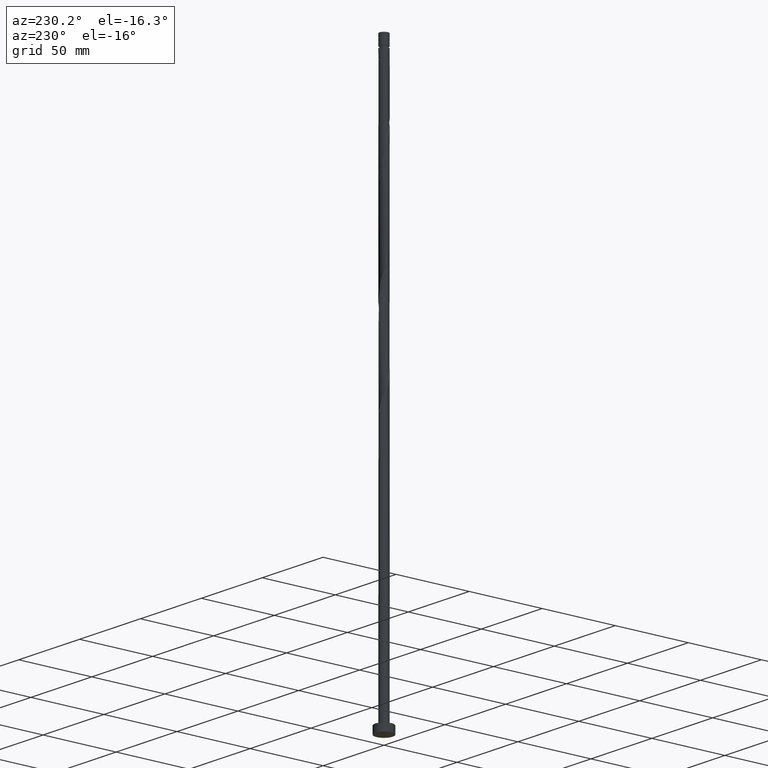
[diagram: clean part render]
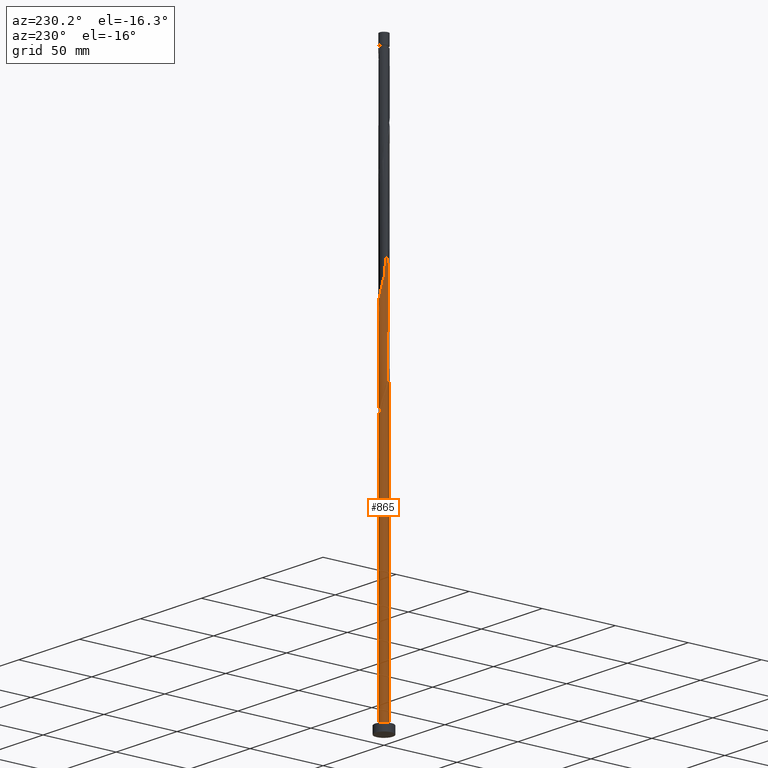
[diagram: same view with one face highlighted and labeled with its STEP entity id]
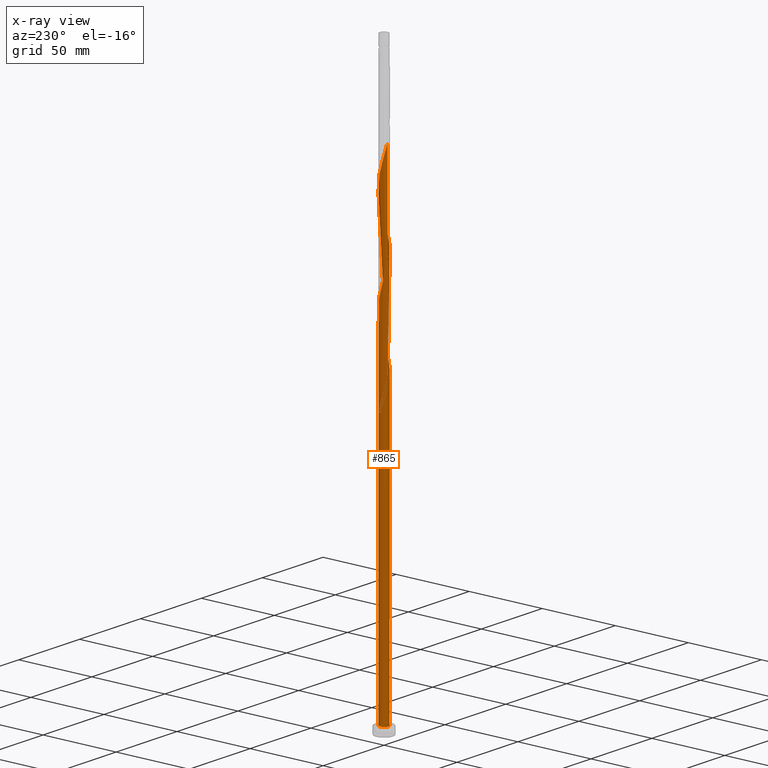
[diagram: x-ray of the same camera — body ghosted, the highlighted face saturated]
A machine part, auxiliary view. The second image highlights one B-rep face of the part: STEP entity #865.
The next image is the same camera in x-ray: the body ghosted, the highlighted face saturated — about 0% of this face is hidden behind the body in this view.
In plain terms, the highlighted cylindrical surface (bore or boss wall) has radius 3 mm, axis along (-0, -0, -1).
Its self-contained STEP definition (entity closure, byte-faithful):
#8 = CARTESIAN_POINT ( 'NONE',  ( -2.956194341916738466, 0.6002808636434361356, 192.5642349410992153 ) ) ;
#10 = CARTESIAN_POINT ( 'NONE',  ( -1.195207115623886374, 2.751632233922632675, 178.1197904966547867 ) ) ;
#19 = VERTEX_POINT ( 'NONE', #1445 ) ;
#36 = DIRECTION ( 'NONE',  ( 0.000000000000000000, -0.000000000000000000, -1.000000000000000000 ) ) ;
#61 = CIRCLE ( 'NONE', #1377, 3.000000000000000444 ) ;
#62 = CARTESIAN_POINT ( 'NONE',  ( -1.245111594254572074, 2.729413328510881254, 182.5642349410991869 ) ) ;
#84 = CARTESIAN_POINT ( 'NONE',  ( 2.584311715169901991, -1.523592123514565744, 284.7864571633214723 ) ) ;
#85 = CARTESIAN_POINT ( 'NONE',  ( 1.484415317302709703, -2.626010904050888772, 279.2309016077658157 ) ) ;
#95 = CARTESIAN_POINT ( 'NONE',  ( -2.211065689225172992, 2.027606598413813632, 249.2309016077659010 ) ) ;
#104 = CARTESIAN_POINT ( 'NONE',  ( -2.424175730171096443, 1.795214230025626412, 317.0086793855437008 ) ) ;
#106 = CARTESIAN_POINT ( 'NONE',  ( 1.245111594254574294, 2.729413328510884362, 235.8975682744325297 ) ) ;
#116 = CARTESIAN_POINT ( 'NONE',  ( 1.997955648279248431, -2.259998966802002851, 214.7864571633214723 ) ) ;
#119 = CARTESIAN_POINT ( 'NONE',  ( 0.2879860105828843109, -3.002746436205632197, 208.1197904966547867 ) ) ;
#124 = CARTESIAN_POINT ( 'NONE',  ( -2.611625341554443036, -1.476283534877587567, 262.5642349410991869 ) ) ;
#136 = ORIENTED_EDGE ( 'NONE', *, *, #305, .F. ) ;
#167 = CARTESIAN_POINT ( 'NONE',  ( -2.861491667719898047, 0.9010357570982414632, 191.4531238299881011 ) ) ;
#179 = CARTESIAN_POINT ( 'NONE',  ( -3.000000000000004885, -4.484524626199453839E-16, 323.7721250309111269 ) ) ;
#187 = CARTESIAN_POINT ( 'NONE',  ( -2.986297077045549919, 0.2864083930844389392, 193.6753460522103580 ) ) ;
#199 = VERTEX_POINT ( 'NONE', #769 ) ;
#208 = VERTEX_POINT ( 'NONE', #179 ) ;
#223 = VERTEX_POINT ( 'NONE', #1476 ) ;
#225 = CARTESIAN_POINT ( 'NONE',  ( 2.456461689585825781, 1.750776419202127565, 297.0086793855436440 ) ) ;
#232 = CARTESIAN_POINT ( 'NONE',  ( 0.9582386936374938102, 2.860279830445437987, 303.6753460522104433 ) ) ;
#233 = CARTESIAN_POINT ( 'NONE',  ( 0.2879860105828843109, -3.002746436205632197, 274.7864571633215292 ) ) ;
#239 = CARTESIAN_POINT ( 'NONE',  ( -0.6504259784947274969, 2.928642355512051765, 180.3420127188770152 ) ) ;
#242 = CARTESIAN_POINT ( 'NONE',  ( 1.785379858637182293, 2.410895841875525747, 300.3420127188769584 ) ) ;
#243 = CARTESIAN_POINT ( 'NONE',  ( 2.956194341916741575, 0.6002808636434358025, 225.8975682744325866 ) ) ;
#247 = CARTESIAN_POINT ( 'NONE',  ( -2.038775222402708032, -2.223244857174723865, 199.2309016077659010 ) ) ;
#251 = CARTESIAN_POINT ( 'NONE',  ( -0.2879860105828826455, 3.002746436205632641, 308.1197904966547298 ) ) ;
#254 = CARTESIAN_POINT ( 'NONE',  ( 1.997955648279248431, -2.259998966802002851, 281.4531238299881011 ) ) ;
#262 = CARTESIAN_POINT ( 'NONE',  ( -0.5969924622639736222, 2.940000000000003944, 309.2309016077659862 ) ) ;
#264 = CARTESIAN_POINT ( 'NONE',  ( -1.741185482790979400, 2.443004935426444924, 247.0086793855437008 ) ) ;
#267 = CARTESIAN_POINT ( 'NONE',  ( 0.9059989139450621565, -2.877253563794376578, 210.3420127188769868 ) ) ;
#270 = ORIENTED_EDGE ( 'NONE', *, *, #885, .F. ) ;
#274 = CARTESIAN_POINT ( 'NONE',  ( -1.531984494871654556, -2.598546826576328961, 268.1197904966549004 ) ) ;
#282 = ORIENTED_EDGE ( 'NONE', *, *, #1621, .T. ) ;
#299 = CARTESIAN_POINT ( 'NONE',  ( -3.000000000000001332, 3.991226917317535029E-15, 194.6896781846206466 ) ) ;
#302 = DIRECTION ( 'NONE',  ( -0.000000000000000000, -0.000000000000000000, -1.000000000000000000 ) ) ;
#305 = EDGE_CURVE ( 'NONE', #748, #19, #1404, .T. ) ;
#321 = CARTESIAN_POINT ( 'NONE',  ( -1.484415317302710147, 2.626010904050888328, 179.2309016077659862 ) ) ;
#328 = DIRECTION ( 'NONE',  ( -1.000000000000000000, 0.000000000000000000, 0.000000000000000000 ) ) ;
#343 = EDGE_CURVE ( 'NONE', #1407, #223, #1546, .T. ) ;
#366 = CARTESIAN_POINT ( 'NONE',  ( -0.9582386936374910347, 2.860279830445433991, 181.4531238299880442 ) ) ;
#371 = CARTESIAN_POINT ( 'NONE',  ( -2.456461689585825781, -1.750776419202128231, 197.0086793855437577 ) ) ;
#376 = CARTESIAN_POINT ( 'NONE',  ( -1.741185482790979400, 2.443004935426444924, 313.6753460522103865 ) ) ;
#384 = CARTESIAN_POINT ( 'NONE',  ( 0.3426132633519654580, 2.997004880578673980, 305.8975682744325582 ) ) ;
#385 = CARTESIAN_POINT ( 'NONE',  ( -2.744447700168710202, 1.251970017003503299, 252.5642349410991869 ) ) ;
#397 = CARTESIAN_POINT ( 'NONE',  ( -0.3426132633519650694, -2.997004880578673980, 272.5642349410992438 ) ) ;
#405 = CARTESIAN_POINT ( 'NONE',  ( 2.038775222402708476, 2.223244857174723421, 299.2309016077659294 ) ) ;
#408 = CARTESIAN_POINT ( 'NONE',  ( 2.247618455994266906, 1.987010638188424938, 231.4531238299881579 ) ) ;
#418 = CARTESIAN_POINT ( 'NONE',  ( -2.456461689585825781, -1.750776419202128231, 263.6753460522103296 ) ) ;
#427 = EDGE_CURVE ( 'NONE', #208, #199, #1753, .T. ) ;
#429 = CARTESIAN_POINT ( 'NONE',  ( -1.484415317302710147, 2.626010904050888328, 245.8975682744325866 ) ) ;
#449 = EDGE_LOOP ( 'NONE', ( #617, #1560, #1030, #1581, #1634, #1662, #136, #282, #270 ) ) ;
#503 = CARTESIAN_POINT ( 'NONE',  ( -2.844610918258240417, 0.9529893618115777842, 187.0086793855436440 ) ) ;
#513 = CARTESIAN_POINT ( 'NONE',  ( -2.861491667719902043, -0.9010357570982412412, 193.6753460522103580 ) ) ;
#520 = CARTESIAN_POINT ( 'NONE',  ( -2.766788993523061624, -1.201790650553046236, 194.7864571633214439 ) ) ;
#525 = CARTESIAN_POINT ( 'NONE',  ( 2.944774136347771520, -0.6540087066196536014, 288.1197904966547298 ) ) ;
#526 = CARTESIAN_POINT ( 'NONE',  ( 2.038775222402708476, 2.223244857174723421, 232.5642349410992438 ) ) ;
#533 = CARTESIAN_POINT ( 'NONE',  ( 2.424175730171095111, -1.795214230025626634, 283.6753460522103865 ) ) ;
#534 = CARTESIAN_POINT ( 'NONE',  ( -1.245111594254573850, -2.729413328510883474, 269.2309016077658157 ) ) ;
#541 = CARTESIAN_POINT ( 'NONE',  ( 0.000000000000000000, 0.000000000000000000, 5.000000000000000000 ) ) ;
#543 = CARTESIAN_POINT ( 'NONE',  ( -1.997955648279249319, 2.259998966802001963, 248.1197904966547867 ) ) ;
#555 = CARTESIAN_POINT ( 'NONE',  ( -2.944774136347771964, 0.6540087066196519361, 254.7864571633214439 ) ) ;
#565 = CARTESIAN_POINT ( 'NONE',  ( -3.016399812174364481, 0.02746407747455963458, 257.0086793855435872 ) ) ;
#600 = CARTESIAN_POINT ( 'NONE',  ( -2.211065689225172992, 2.027606598413813632, 182.5642349410993006 ) ) ;
#615 = CARTESIAN_POINT ( 'NONE',  ( 0.5969924622639746215, 2.940000000000000835, 175.8975682744325297 ) ) ;
#617 = ORIENTED_EDGE ( 'NONE', *, *, #427, .F. ) ;
#641 = CARTESIAN_POINT ( 'NONE',  ( -2.980586974261068001, 0.3407363920471054297, 189.2309016077659010 ) ) ;
#645 = CARTESIAN_POINT ( 'NONE',  ( -3.000000000000003553, -0.1435319978602576652, 190.9473402231417651 ) ) ;
#649 = CARTESIAN_POINT ( 'NONE',  ( 2.980586974261068001, -0.3407363920471055962, 289.2309016077659862 ) ) ;
#653 = AXIS2_PLACEMENT_3D ( 'NONE', #793, #1085, #1329 ) ;
#657 = CARTESIAN_POINT ( 'NONE',  ( 0.5969924622639746215, 2.940000000000000835, 175.8975682744325297 ) ) ;
#661 = CARTESIAN_POINT ( 'NONE',  ( 1.741185482790978512, -2.443004935426445812, 280.3420127188770152 ) ) ;
#668 = VECTOR ( 'NONE', #1831, 1000.000000000000000 ) ;
#674 = CARTESIAN_POINT ( 'NONE',  ( 1.531984494871656111, 2.598546826576328073, 301.4531238299881011 ) ) ;
#675 = CARTESIAN_POINT ( 'NONE',  ( -2.861491667719902043, -0.9010357570982412412, 260.3420127188770152 ) ) ;
#679 = CARTESIAN_POINT ( 'NONE',  ( -1.531984494871654556, -2.598546826576328961, 201.4531238299880727 ) ) ;
#683 = CARTESIAN_POINT ( 'NONE',  ( 1.245111594254574294, 2.729413328510884362, 302.5642349410992438 ) ) ;
#686 = CARTESIAN_POINT ( 'NONE',  ( 2.424175730171095111, -1.795214230025626634, 217.0086793855436724 ) ) ;
#697 = CARTESIAN_POINT ( 'NONE',  ( -2.956194341916741575, -0.6002808636434362466, 259.2309016077658725 ) ) ;
#700 = CARTESIAN_POINT ( 'NONE',  ( -0.02731362638454099684, -2.999875658392152644, 207.0086793855436440 ) ) ;
#705 = CARTESIAN_POINT ( 'NONE',  ( 3.000000000000000444, 0.000000000000000000, 5.000000000000000000 ) ) ;
#707 = CARTESIAN_POINT ( 'NONE',  ( -0.9059989139450634887, 2.877253563794375246, 243.6753460522103580 ) ) ;
#737 = CARTESIAN_POINT ( 'NONE',  ( -0.5969924622639735112, 2.940000000000003944, 175.8975682744325297 ) ) ;
#745 = CARTESIAN_POINT ( 'NONE',  ( -2.766788993523058071, 1.201790650553046014, 190.3420127188769868 ) ) ;
#748 = VERTEX_POINT ( 'NONE', #996 ) ;
#766 = DIRECTION ( 'NONE',  ( -1.000000000000000000, 0.000000000000000000, 0.000000000000000000 ) ) ;
#769 = CARTESIAN_POINT ( 'NONE',  ( -3.000000000000001332, 3.991226917317535029E-15, 194.6896781846206750 ) ) ;
#793 = CARTESIAN_POINT ( 'NONE',  ( 0.000000000000000000, 0.000000000000000000, 5.000000000000000000 ) ) ;
#803 = DIRECTION ( 'NONE',  ( 1.000000000000000000, 0.000000000000000000, 0.000000000000000000 ) ) ;
#808 = LINE ( 'NONE', #1385, #668 ) ;
#810 = CARTESIAN_POINT ( 'NONE',  ( -2.944774136347771964, 0.6540087066196519361, 321.4531238299881579 ) ) ;
#811 = CARTESIAN_POINT ( 'NONE',  ( 2.211065689225172104, -2.027606598413813632, 215.8975682744325582 ) ) ;
#818 = CARTESIAN_POINT ( 'NONE',  ( -2.247618455994262465, 1.987010638188425382, 187.0086793855436724 ) ) ;
#822 = CARTESIAN_POINT ( 'NONE',  ( 2.766788993523062512, 1.201790650553044904, 228.1197904966547583 ) ) ;
#830 = CARTESIAN_POINT ( 'NONE',  ( -3.000000000000004885, -4.484524626199453839E-16, 323.7721250309111269 ) ) ;
#832 = CARTESIAN_POINT ( 'NONE',  ( 2.211065689225172104, -2.027606598413813632, 282.5642349410993575 ) ) ;
#842 = CARTESIAN_POINT ( 'NONE',  ( 2.247618455994266906, 1.987010638188424938, 298.1197904966547867 ) ) ;
#844 = CARTESIAN_POINT ( 'NONE',  ( -2.584311715169902435, 1.523592123514564856, 251.4531238299880727 ) ) ;
#848 = CARTESIAN_POINT ( 'NONE',  ( -0.3426132633519650694, -2.997004880578673980, 205.8975682744325866 ) ) ;
#853 = CARTESIAN_POINT ( 'NONE',  ( -0.9582386936374935882, -2.860279830445437987, 270.3420127188769015 ) ) ;
#865 = ADVANCED_FACE ( 'NONE', ( #907 ), #1779, .T. ) ;
#885 = EDGE_CURVE ( 'NONE', #199, #1539, #1215, .T. ) ;
#907 = FACE_OUTER_BOUND ( 'NONE', #449, .T. ) ;
#913 = CARTESIAN_POINT ( 'NONE',  ( 0.000000000000000000, 0.000000000000000000, 175.8975682744325297 ) ) ;
#918 = EDGE_CURVE ( 'NONE', #19, #223, #808, .T. ) ;
#929 = CARTESIAN_POINT ( 'NONE',  ( -2.456461689585820896, 1.750776419202127343, 188.1197904966547583 ) ) ;
#935 = CARTESIAN_POINT ( 'NONE',  ( -1.531984494871652336, 2.598546826576326296, 183.6753460522103296 ) ) ;
#947 = CARTESIAN_POINT ( 'NONE',  ( -2.944774136347771964, 0.6540087066196519361, 188.1197904966548435 ) ) ;
#956 = CARTESIAN_POINT ( 'NONE',  ( 1.785379858637182293, 2.410895841875525747, 233.6753460522103580 ) ) ;
#964 = CARTESIAN_POINT ( 'NONE',  ( -1.195207115623886374, 2.751632233922632675, 311.4531238299882716 ) ) ;
#966 = CARTESIAN_POINT ( 'NONE',  ( -0.02731362638454099684, -2.999875658392152644, 273.6753460522103865 ) ) ;
#971 = CARTESIAN_POINT ( 'NONE',  ( -0.6504259784947296064, -2.928642355512055762, 204.7864571633215007 ) ) ;
#977 = CARTESIAN_POINT ( 'NONE',  ( -2.584311715169902435, 1.523592123514564856, 318.1197904966548435 ) ) ;
#979 = CARTESIAN_POINT ( 'NONE',  ( 1.531984494871656111, 2.598546826576328073, 234.7864571633214439 ) ) ;
#989 = CARTESIAN_POINT ( 'NONE',  ( 1.484415317302709703, -2.626010904050888772, 212.5642349410992438 ) ) ;
#996 = CARTESIAN_POINT ( 'NONE',  ( -0.5969924622639735112, 2.940000000000003944, 175.8975682744325297 ) ) ;
#1020 = CARTESIAN_POINT ( 'NONE',  ( -3.000000000000000444, 0.000000000000000000, 384.2300000000000182 ) ) ;
#1030 = ORIENTED_EDGE ( 'NONE', *, *, #918, .T. ) ;
#1038 = AXIS2_PLACEMENT_3D ( 'NONE', #541, #1708, #803 ) ;
#1041 = CARTESIAN_POINT ( 'NONE',  ( -2.584311715169902435, 1.523592123514564856, 184.7864571633214155 ) ) ;
#1061 = EDGE_CURVE ( 'NONE', #19, #208, #1266, .T. ) ;
#1076 = CARTESIAN_POINT ( 'NONE',  ( -1.785379858637178518, 2.410895841875523082, 184.7864571633214439 ) ) ;
#1085 = DIRECTION ( 'NONE',  ( 0.000000000000000000, 0.000000000000000000, 1.000000000000000000 ) ) ;
#1099 = CARTESIAN_POINT ( 'NONE',  ( 2.956194341916741575, 0.6002808636434358025, 292.5642349410992438 ) ) ;
#1100 = CARTESIAN_POINT ( 'NONE',  ( 0.02731362638454142705, 2.999875658392153088, 240.3420127188770152 ) ) ;
#1107 = CARTESIAN_POINT ( 'NONE',  ( 3.016399812174364925, -0.02746407747456069276, 290.3420127188770721 ) ) ;
#1108 = CARTESIAN_POINT ( 'NONE',  ( 2.980586974261068001, -0.3407363920471055962, 222.5642349410991869 ) ) ;
#1117 = CARTESIAN_POINT ( 'NONE',  ( -2.980586974261068001, 0.3407363920471054297, 322.5642349410991301 ) ) ;
#1119 = CARTESIAN_POINT ( 'NONE',  ( -2.766788993523061624, -1.201790650553046236, 261.4531238299881579 ) ) ;
#1129 = CARTESIAN_POINT ( 'NONE',  ( 2.611625341554443036, 1.476283534877587345, 295.8975682744325582 ) ) ;
#1131 = CARTESIAN_POINT ( 'NONE',  ( 2.584311715169901991, -1.523592123514565744, 218.1197904966547867 ) ) ;
#1142 = CARTESIAN_POINT ( 'NONE',  ( -0.2879860105828826455, 3.002746436205632641, 241.4531238299881011 ) ) ;
#1171 = EDGE_CURVE ( 'NONE', #223, #1407, #1248, .T. ) ;
#1181 = CARTESIAN_POINT ( 'NONE',  ( -2.424175730171096443, 1.795214230025626412, 183.6753460522103012 ) ) ;
#1207 = VECTOR ( 'NONE', #302, 1000.000000000000000 ) ;
#1215 =( BOUNDED_CURVE ( )  B_SPLINE_CURVE ( 2, ( #299, #1492, #187, #8, #167, #745, #1349, #929, #818, #1514, #1076, #935, #62, #366, #239, #1823, #1226, #1375, #657 ),
 .UNSPECIFIED., .F., .T. ) 
 B_SPLINE_CURVE_WITH_KNOTS ( ( 3, 2, 2, 2, 2, 2, 2, 2, 2, 3 ),
 ( 0.9295286012773115170, 0.9333333333333333481, 0.9416666666666666519, 0.9499999999999999556, 0.9583333333333333703, 0.9666666666666666741, 0.9749999999999999778, 0.9833333333333332815, 0.9916666666666666963, 1.000000000000000000 ),
 .UNSPECIFIED. ) 
 CURVE ( )  GEOMETRIC_REPRESENTATION_ITEM ( )  RATIONAL_B_SPLINE_CURVE ( ( 0.9066196499552441335, 0.9068171577856569687, 0.9090909090909558010, 0.9041108139712040748, 0.9090909090909558010, 0.9041108139712040748, 0.9090909090909558010, 0.9041108139712040748, 0.9090909090909558010, 0.9041108139712040748, 0.9090909090909558010, 0.9041108139712040748, 0.9090909090909558010, 0.9041108139712040748, 0.9090909090909558010, 0.9041108139712040748, 0.9090909090909558010, 0.9041108139712040748, 0.9090909090909558010 ) ) 
 REPRESENTATION_ITEM ( '' )  );
#1226 = CARTESIAN_POINT ( 'NONE',  ( -0.02731362638453935232, 2.999875658392149091, 178.1197904966547298 ) ) ;
#1236 = CARTESIAN_POINT ( 'NONE',  ( 0.02731362638454142705, 2.999875658392153088, 307.0086793855437008 ) ) ;
#1240 = CARTESIAN_POINT ( 'NONE',  ( -2.986297077045553472, -0.2864083930844378845, 191.4531238299881011 ) ) ;
#1245 = CARTESIAN_POINT ( 'NONE',  ( 0.6504259784947311607, 2.928642355512054873, 304.7864571633214155 ) ) ;
#1246 = CARTESIAN_POINT ( 'NONE',  ( 2.744447700168710202, -1.251970017003503743, 219.2309016077658725 ) ) ;
#1248 = CIRCLE ( 'NONE', #1038, 3.000000000000000444 ) ;
#1257 = CARTESIAN_POINT ( 'NONE',  ( -0.5969924622639736222, 2.940000000000003944, 242.5642349410992722 ) ) ;
#1260 = CARTESIAN_POINT ( 'NONE',  ( -2.611625341554443036, -1.476283534877587567, 195.8975682744326150 ) ) ;
#1266 =( BOUNDED_CURVE ( )  B_SPLINE_CURVE ( 2, ( #1673, #645, #1240, #1829, #513, #520, #1260, #371, #1550, #247, #1409, #679, #1847, #1704, #971, #848, #700, #119, #1572, #267, #1431, #989, #1277, #116, #811, #686, #1131, #1246, #1722, #1865, #1108, #1692, #1415, #243, #1267, #822, #1428, #1405, #408, #526, #956, #979, #106, #1853, #1701, #1834, #1100, #1142, #1257, #707, #1569, #429, #264, #543, #95, #1710, #844, #385, #1547, #555, #1730, #565, #1286, #697, #675, #1119, #124, #418, #1537, #1843, #1579, #274, #534, #853, #1436, #397, #966, #233, #1874, #1396, #1557, #85, #661, #254, #832, #533, #84, #1720, #1851, #525, #649, #1107, #1523, #1099, #1567, #1555, #1129, #225, #842, #405, #242, #674, #683, #232, #1245, #384, #1236, #251, #262, #1842, #964, #1690, #376, #1413, #1825, #104, #977, #1425, #1275, #810, #1117, #1700, #830 ),
 .UNSPECIFIED., .F., .T. ) 
 B_SPLINE_CURVE_WITH_KNOTS ( ( 3, 2, 2, 2, 2, 2, 2, 2, 2, 2, 2, 2, 2, 2, 2, 2, 2, 2, 2, 2, 2, 2, 2, 2, 2, 2, 2, 2, 2, 2, 2, 2, 2, 2, 2, 2, 2, 2, 2, 2, 2, 2, 2, 2, 2, 2, 2, 2, 2, 2, 2, 2, 2, 2, 2, 2, 2, 2, 2, 2, 2, 3 ),
 ( 0.05452860127731172513, 0.05833333333333334814, 0.06666666666666665186, 0.07499999999999995559, 0.08333333333333337034, 0.09166666666666667407, 0.09999999999999997780, 0.1083333333333332815, 0.1166666666666666963, 0.1250000000000000000, 0.1333333333333333037, 0.1416666666666667185, 0.1500000000000000222, 0.1583333333333333259, 0.1666666666666666297, 0.1750000000000000444, 0.1833333333333333481, 0.1916666666666666519, 0.1999999999999999556, 0.2083333333333333703, 0.2166666666666666741, 0.2249999999999999778, 0.2333333333333332815, 0.2416666666666666963, 0.2500000000000000000, 0.2583333333333333037, 0.2666666666666667185, 0.2750000000000000222, 0.2833333333333333259, 0.2916666666666666297, 0.3000000000000000444, 0.3083333333333333481, 0.3166666666666666519, 0.3249999999999999556, 0.3333333333333333703, 0.3416666666666666741, 0.3499999999999999778, 0.3583333333333332815, 0.3666666666666666963, 0.3750000000000000000, 0.3833333333333333037, 0.3916666666666667185, 0.4000000000000000222, 0.4083333333333333259, 0.4166666666666666297, 0.4250000000000000444, 0.4333333333333333481, 0.4416666666666666519, 0.4499999999999999556, 0.4583333333333333703, 0.4666666666666666741, 0.4749999999999999778, 0.4833333333333332815, 0.4916666666666666963, 0.5000000000000000000, 0.5083333333333333037, 0.5166666666666666075, 0.5250000000000000222, 0.5333333333333333259, 0.5416666666666667407, 0.5500000000000000444, 0.5545286012773115170 ),
 .UNSPECIFIED. ) 
 CURVE ( )  GEOMETRIC_REPRESENTATION_ITEM ( )  RATIONAL_B_SPLINE_CURVE ( ( 0.9066196499552490184, 0.9068171577856618537, 0.9090909090909605750, 0.9041108139712088487, 0.9090909090909605750, 0.9041108139712088487, 0.9090909090909605750, 0.9041108139712088487, 0.9090909090909605750, 0.9041108139712088487, 0.9090909090909605750, 0.9041108139712088487, 0.9090909090909605750, 0.9041108139712088487, 0.9090909090909605750, 0.9041108139712088487, 0.9090909090909605750, 0.9041108139712088487, 0.9090909090909605750, 0.9041108139712088487, 0.9090909090909605750, 0.9041108139712088487, 0.9090909090909605750, 0.9041108139712088487, 0.9090909090909605750, 0.9041108139712088487, 0.9090909090909605750, 0.9041108139712088487, 0.9090909090909605750, 0.9041108139712088487, 0.9090909090909605750, 0.9041108139712088487, 0.9090909090909605750, 0.9041108139712088487, 0.9090909090909605750, 0.9041108139712088487, 0.9090909090909605750, 0.9041108139712088487, 0.9090909090909605750, 0.9041108139712088487, 0.9090909090909605750, 0.9041108139712088487, 0.9090909090909605750, 0.9041108139712088487, 0.9090909090909605750, 0.9041108139712088487, 0.9090909090909605750, 0.9041108139712088487, 0.9090909090909605750, 0.9041108139712088487, 0.9090909090909605750, 0.9041108139712088487, 0.9090909090909605750, 0.9041108139712088487, 0.9090909090909605750, 0.9041108139712088487, 0.9090909090909605750, 0.9041108139712088487, 0.9090909090909605750, 0.9041108139712088487, 0.9090909090909605750, 0.9041108139712088487, 0.9090909090909605750, 0.9041108139712088487, 0.9090909090909605750, 0.9041108139712088487, 0.9090909090909605750, 0.9041108139712088487, 0.9090909090909605750, 0.9041108139712088487, 0.9090909090909605750, 0.9041108139712088487, 0.9090909090909605750, 0.9041108139712088487, 0.9090909090909605750, 0.9041108139712088487, 0.9090909090909605750, 0.9041108139712088487, 0.9090909090909605750, 0.9041108139712088487, 0.9090909090909605750, 0.9041108139712088487, 0.9090909090909605750, 0.9041108139712088487, 0.9090909090909605750, 0.9041108139712088487, 0.9090909090909605750, 0.9041108139712088487, 0.9090909090909605750, 0.9041108139712088487, 0.9090909090909605750, 0.9041108139712088487, 0.9090909090909605750, 0.9041108139712088487, 0.9090909090909605750, 0.9041108139712088487, 0.9090909090909605750, 0.9041108139712088487, 0.9090909090909605750, 0.9041108139712088487, 0.9090909090909605750, 0.9041108139712088487, 0.9090909090909605750, 0.9041108139712088487, 0.9090909090909605750, 0.9041108139712088487, 0.9090909090909605750, 0.9041108139712088487, 0.9090909090909605750, 0.9041108139712088487, 0.9090909090909605750, 0.9041108139712088487, 0.9090909090909605750, 0.9041108139712088487, 0.9090909090909605750, 0.9041108139712088487, 0.9090909090909605750, 0.9041108139712088487, 0.9090909090909605750, 0.9041108139712088487, 0.9090909090909605750, 0.9063845652765076810, 0.9066196499552487964 ) ) 
 REPRESENTATION_ITEM ( '' )  );
#1267 = CARTESIAN_POINT ( 'NONE',  ( 2.861491667719902487, 0.9010357570982404640, 227.0086793855437008 ) ) ;
#1275 = CARTESIAN_POINT ( 'NONE',  ( -2.844610918258240417, 0.9529893618115777842, 320.3420127188770721 ) ) ;
#1277 = CARTESIAN_POINT ( 'NONE',  ( 1.741185482790978512, -2.443004935426445812, 213.6753460522103580 ) ) ;
#1286 = CARTESIAN_POINT ( 'NONE',  ( -2.986297077045553472, -0.2864083930844378845, 258.1197904966547867 ) ) ;
#1317 = CARTESIAN_POINT ( 'NONE',  ( -0.9059989139450634887, 2.877253563794375246, 177.0086793855436440 ) ) ;
#1326 = CARTESIAN_POINT ( 'NONE',  ( -1.741185482790979400, 2.443004935426444924, 180.3420127188770152 ) ) ;
#1329 = DIRECTION ( 'NONE',  ( 1.000000000000000000, 0.000000000000000000, 0.000000000000000000 ) ) ;
#1349 = CARTESIAN_POINT ( 'NONE',  ( -2.611625341554439039, 1.476283534877586456, 189.2309016077658725 ) ) ;
#1359 = CARTESIAN_POINT ( 'NONE',  ( 0.000000000000000000, 0.000000000000000000, 384.2300000000000182 ) ) ;
#1370 = CARTESIAN_POINT ( 'NONE',  ( -2.744447700168710202, 1.251970017003503299, 185.8975682744325013 ) ) ;
#1375 = CARTESIAN_POINT ( 'NONE',  ( 0.2879860105828850325, 3.002746436205627756, 177.0086793855436440 ) ) ;
#1377 = AXIS2_PLACEMENT_3D ( 'NONE', #913, #36, #766 ) ;
#1385 = CARTESIAN_POINT ( 'NONE',  ( -3.000000000000000444, 0.000000000000000000, 384.2300000000000182 ) ) ;
#1395 = CARTESIAN_POINT ( 'NONE',  ( -3.000000000000004441, -2.690714775719672501E-15, 190.4387916975777557 ) ) ;
#1396 = CARTESIAN_POINT ( 'NONE',  ( 0.9059989139450621565, -2.877253563794376578, 277.0086793855436440 ) ) ;
#1404 =( BOUNDED_CURVE ( )  B_SPLINE_CURVE ( 2, ( #737, #1317, #10, #321, #1326, #1762, #600, #1181, #1041, #1370, #503, #947, #641, #1536, #1395 ),
 .UNSPECIFIED., .F., .T. ) 
 B_SPLINE_CURVE_WITH_KNOTS ( ( 3, 2, 2, 2, 2, 2, 2, 3 ),
 ( 0.000000000000000000, 0.008333333333333303727, 0.01666666666666671848, 0.02500000000000002220, 0.03333333333333332593, 0.04166666666666662966, 0.05000000000000004441, 0.05452860127731172513 ),
 .UNSPECIFIED. ) 
 CURVE ( )  GEOMETRIC_REPRESENTATION_ITEM ( )  RATIONAL_B_SPLINE_CURVE ( ( 0.9090909090909605750, 0.9041108139712088487, 0.9090909090909605750, 0.9041108139712088487, 0.9090909090909605750, 0.9041108139712088487, 0.9090909090909605750, 0.9041108139712088487, 0.9090909090909605750, 0.9041108139712088487, 0.9090909090909605750, 0.9041108139712088487, 0.9090909090909605750, 0.9063845652765075700, 0.9066196499552490184 ) ) 
 REPRESENTATION_ITEM ( '' )  );
#1405 = CARTESIAN_POINT ( 'NONE',  ( 2.456461689585825781, 1.750776419202127565, 230.3420127188770152 ) ) ;
#1407 = VERTEX_POINT ( 'NONE', #705 ) ;
#1409 = CARTESIAN_POINT ( 'NONE',  ( -1.785379858637181627, -2.410895841875526635, 200.3420127188769868 ) ) ;
#1413 = CARTESIAN_POINT ( 'NONE',  ( -1.997955648279249319, 2.259998966802001963, 314.7864571633214155 ) ) ;
#1415 = CARTESIAN_POINT ( 'NONE',  ( 2.986297077045553916, 0.2864083930844362191, 224.7864571633214439 ) ) ;
#1425 = CARTESIAN_POINT ( 'NONE',  ( -2.744447700168710202, 1.251970017003503299, 319.2309016077658725 ) ) ;
#1428 = CARTESIAN_POINT ( 'NONE',  ( 2.611625341554443036, 1.476283534877587345, 229.2309016077659010 ) ) ;
#1431 = CARTESIAN_POINT ( 'NONE',  ( 1.195207115623885930, -2.751632233922632675, 211.4531238299881011 ) ) ;
#1436 = CARTESIAN_POINT ( 'NONE',  ( -0.6504259784947296064, -2.928642355512055762, 271.4531238299881011 ) ) ;
#1445 = CARTESIAN_POINT ( 'NONE',  ( -3.000000000000004441, -2.690714775719672501E-15, 190.4387916975777557 ) ) ;
#1476 = CARTESIAN_POINT ( 'NONE',  ( -3.000000000000000444, 0.000000000000000000, 5.000000000000000000 ) ) ;
#1492 = CARTESIAN_POINT ( 'NONE',  ( -3.000000000000000444, 0.1435319978602510871, 194.1811296590565803 ) ) ;
#1514 = CARTESIAN_POINT ( 'NONE',  ( -2.038775222402705367, 2.223244857174720757, 185.8975682744325582 ) ) ;
#1523 = CARTESIAN_POINT ( 'NONE',  ( 2.986297077045553916, 0.2864083930844362191, 291.4531238299881579 ) ) ;
#1536 = CARTESIAN_POINT ( 'NONE',  ( -3.000000000000006217, 0.1709212123392890026, 189.8332003881932053 ) ) ;
#1537 = CARTESIAN_POINT ( 'NONE',  ( -2.247618455994266018, -1.987010638188426048, 264.7864571633215292 ) ) ;
#1539 = VERTEX_POINT ( 'NONE', #615 ) ;
#1546 = CIRCLE ( 'NONE', #653, 3.000000000000000444 ) ;
#1547 = CARTESIAN_POINT ( 'NONE',  ( -2.844610918258240417, 0.9529893618115777842, 253.6753460522103580 ) ) ;
#1550 = CARTESIAN_POINT ( 'NONE',  ( -2.247618455994266018, -1.987010638188426048, 198.1197904966547867 ) ) ;
#1555 = CARTESIAN_POINT ( 'NONE',  ( 2.766788993523062512, 1.201790650553044904, 294.7864571633213018 ) ) ;
#1557 = CARTESIAN_POINT ( 'NONE',  ( 1.195207115623885930, -2.751632233922632675, 278.1197904966547867 ) ) ;
#1559 = AXIS2_PLACEMENT_3D ( 'NONE', #1359, #1633, #328 ) ;
#1560 = ORIENTED_EDGE ( 'NONE', *, *, #1061, .F. ) ;
#1567 = CARTESIAN_POINT ( 'NONE',  ( 2.861491667719902487, 0.9010357570982404640, 293.6753460522103865 ) ) ;
#1569 = CARTESIAN_POINT ( 'NONE',  ( -1.195207115623886374, 2.751632233922632675, 244.7864571633214439 ) ) ;
#1572 = CARTESIAN_POINT ( 'NONE',  ( 0.5969924622639741774, -2.940000000000003944, 209.2309016077659010 ) ) ;
#1579 = CARTESIAN_POINT ( 'NONE',  ( -1.785379858637181627, -2.410895841875526635, 267.0086793855437577 ) ) ;
#1581 = ORIENTED_EDGE ( 'NONE', *, *, #1171, .T. ) ;
#1621 = EDGE_CURVE ( 'NONE', #748, #1539, #61, .T. ) ;
#1633 = DIRECTION ( 'NONE',  ( -0.000000000000000000, -0.000000000000000000, -1.000000000000000000 ) ) ;
#1634 = ORIENTED_EDGE ( 'NONE', *, *, #343, .T. ) ;
#1662 = ORIENTED_EDGE ( 'NONE', *, *, #918, .F. ) ;
#1673 = CARTESIAN_POINT ( 'NONE',  ( -3.000000000000004441, -2.690714775719672501E-15, 190.4387916975777557 ) ) ;
#1690 = CARTESIAN_POINT ( 'NONE',  ( -1.484415317302710147, 2.626010904050888328, 312.5642349410991301 ) ) ;
#1692 = CARTESIAN_POINT ( 'NONE',  ( 3.016399812174364925, -0.02746407747456069276, 223.6753460522103580 ) ) ;
#1700 = CARTESIAN_POINT ( 'NONE',  ( -3.000000000000004441, 0.1709212123392968852, 323.1665337215264913 ) ) ;
#1701 = CARTESIAN_POINT ( 'NONE',  ( 0.6504259784947311607, 2.928642355512054873, 238.1197904966547298 ) ) ;
#1704 = CARTESIAN_POINT ( 'NONE',  ( -0.9582386936374935882, -2.860279830445437987, 203.6753460522102728 ) ) ;
#1708 = DIRECTION ( 'NONE',  ( 0.000000000000000000, 0.000000000000000000, 1.000000000000000000 ) ) ;
#1710 = CARTESIAN_POINT ( 'NONE',  ( -2.424175730171096443, 1.795214230025626412, 250.3420127188770152 ) ) ;
#1720 = CARTESIAN_POINT ( 'NONE',  ( 2.744447700168710202, -1.251970017003503743, 285.8975682744326150 ) ) ;
#1722 = CARTESIAN_POINT ( 'NONE',  ( 2.844610918258240417, -0.9529893618115786724, 220.3420127188770152 ) ) ;
#1730 = CARTESIAN_POINT ( 'NONE',  ( -2.980586974261068001, 0.3407363920471054297, 255.8975682744325582 ) ) ;
#1753 = LINE ( 'NONE', #1020, #1207 ) ;
#1762 = CARTESIAN_POINT ( 'NONE',  ( -1.997955648279249319, 2.259998966802001963, 181.4531238299881579 ) ) ;
#1779 = CYLINDRICAL_SURFACE ( 'NONE', #1559, 3.000000000000000444 ) ;
#1823 = CARTESIAN_POINT ( 'NONE',  ( -0.3426132633519637927, 2.997004880578670871, 179.2309016077658725 ) ) ;
#1825 = CARTESIAN_POINT ( 'NONE',  ( -2.211065689225172992, 2.027606598413813632, 315.8975682744325582 ) ) ;
#1829 = CARTESIAN_POINT ( 'NONE',  ( -2.956194341916741575, -0.6002808636434362466, 192.5642349410991869 ) ) ;
#1831 = DIRECTION ( 'NONE',  ( -0.000000000000000000, -0.000000000000000000, -1.000000000000000000 ) ) ;
#1834 = CARTESIAN_POINT ( 'NONE',  ( 0.3426132633519654580, 2.997004880578673980, 239.2309016077658725 ) ) ;
#1842 = CARTESIAN_POINT ( 'NONE',  ( -0.9059989139450634887, 2.877253563794375246, 310.3420127188771289 ) ) ;
#1843 = CARTESIAN_POINT ( 'NONE',  ( -2.038775222402708032, -2.223244857174723865, 265.8975682744325582 ) ) ;
#1847 = CARTESIAN_POINT ( 'NONE',  ( -1.245111594254573850, -2.729413328510883474, 202.5642349410991869 ) ) ;
#1851 = CARTESIAN_POINT ( 'NONE',  ( 2.844610918258240417, -0.9529893618115786724, 287.0086793855435872 ) ) ;
#1853 = CARTESIAN_POINT ( 'NONE',  ( 0.9582386936374938102, 2.860279830445437987, 237.0086793855436440 ) ) ;
#1865 = CARTESIAN_POINT ( 'NONE',  ( 2.944774136347771520, -0.6540087066196536014, 221.4531238299880727 ) ) ;
#1874 = CARTESIAN_POINT ( 'NONE',  ( 0.5969924622639741774, -2.940000000000003944, 275.8975682744325582 ) ) ;